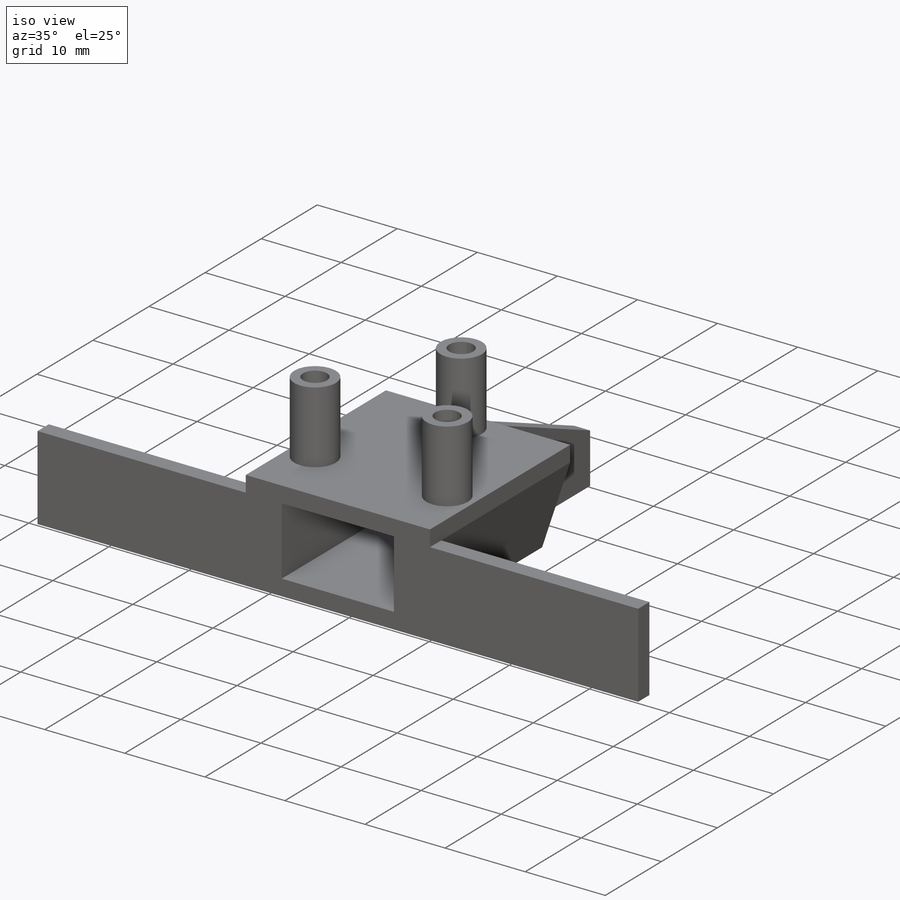
[diagram: iso view]
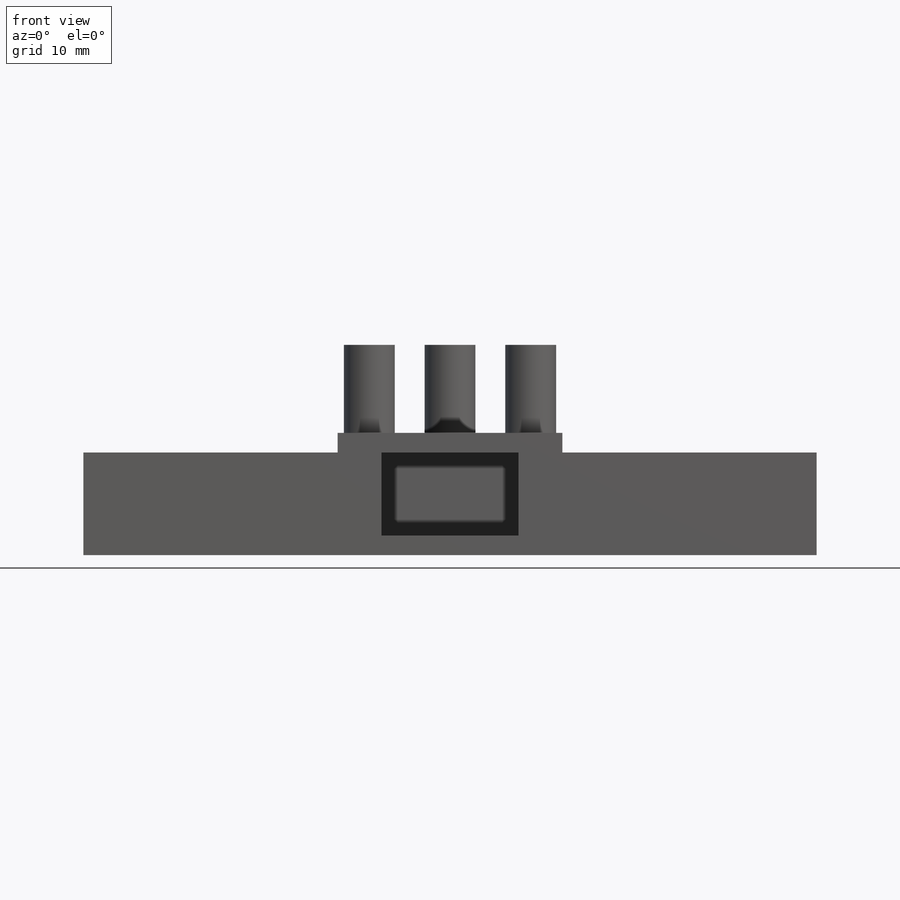
[diagram: front view]
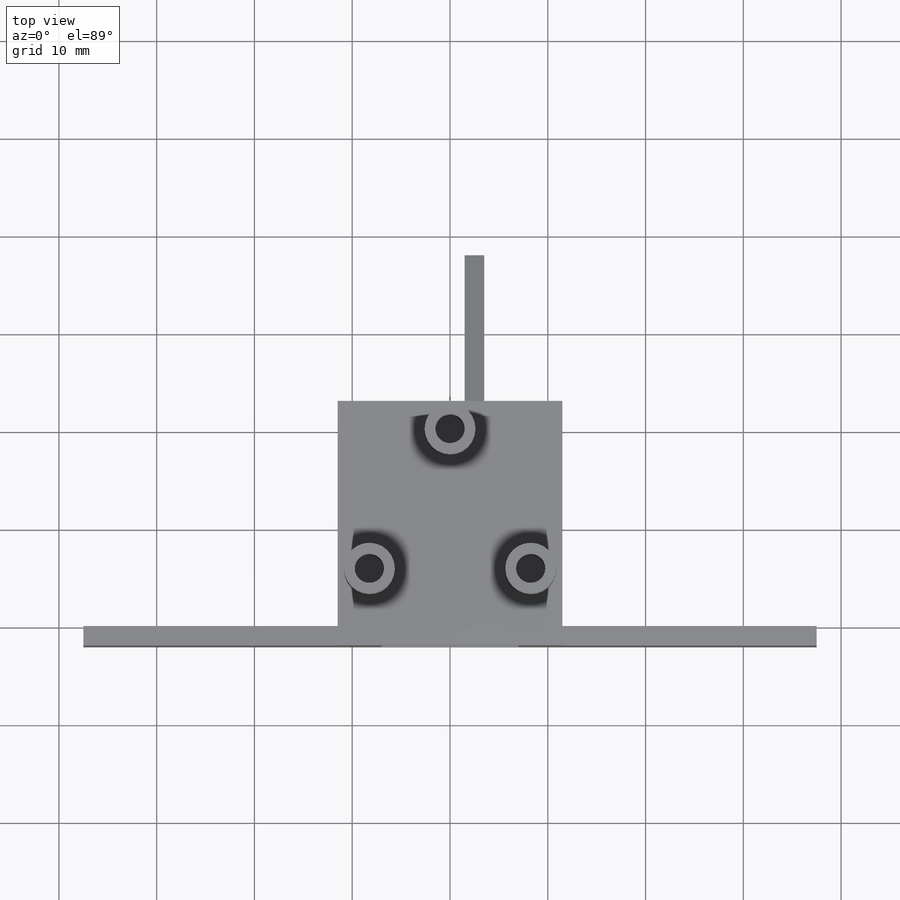
[diagram: top view]
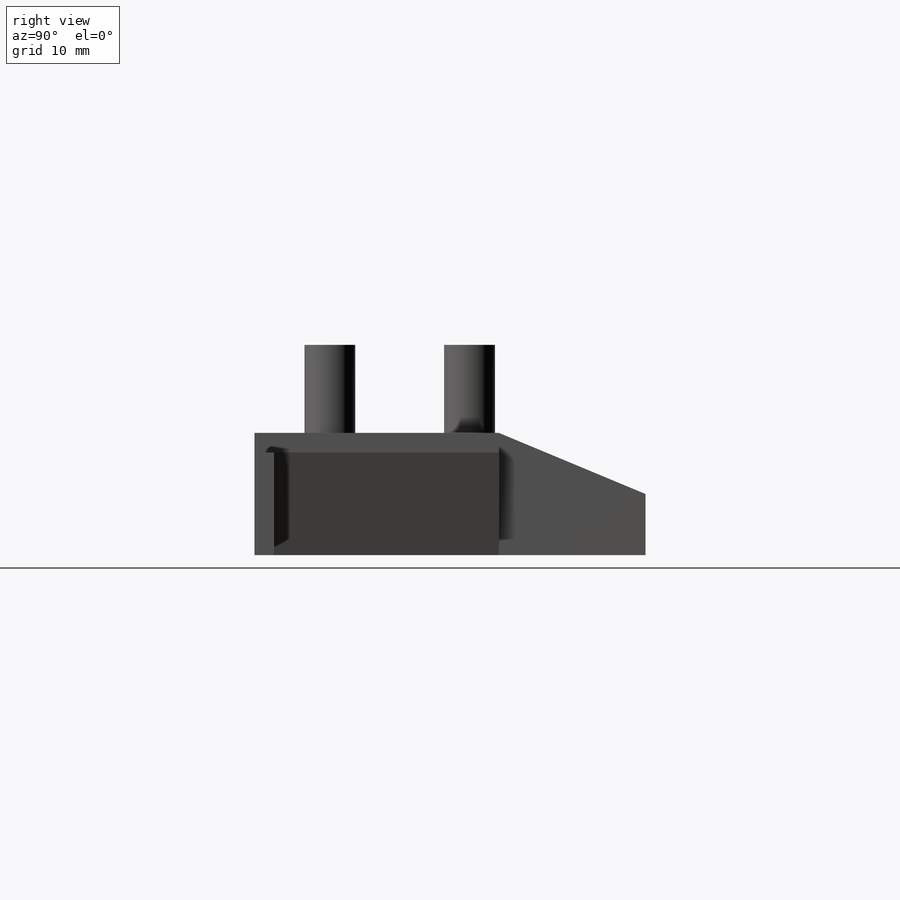
[diagram: right view]
SOLIDWORKS PART (.sldprt)
format: sldprt  version: not decoded by parser v0  size: 237,568 bytes
history: native  units: mm
features: sketch x8, extrude x5, cut_extrude x3, material x1, plane x1 (+11 scaffold rows collapsed)
feature tree (29):
  scaffold x11  (default folders/planes/origin — collapsed)
  material  "Material <not specified>"
  sketch  "Sketch1"  dims[D1=5.2mm D3=3.0mm D2=16.5mm]
  extrude  "Boss-Extrude1"  Depth=9mm
  sketch  "Sketch2"  dims[D1=23.0mm D2=25.0mm D3=3.0mm]
  extrude  "Boss-Extrude2"  Depth=12.5mm
  sketch  "Sketch3"  dims[D1=8.5mm D2=2.0mm D3=14.0mm D4=2.0mm]
  cut_extrude  "Cut-Extrude1"  Depth=2mm
  plane  "Plane1"
  sketch  "Sketch4"  dims[c1.D1=2.0mm c1.D2=10.0mm c2.D1=2.0mm c2.D2=10.5mm]
  extrude  "Boss-Extrude3"  Depth=26mm
  extrude  "Boss-Extrude4"  [1 undecoded]
  sketch  "Sketch4<2>"  dims[D1=26.0mm]
  sketch  "Sketch5"  dims[D1=2.0mm D2=1.5mm]
  extrude  "Boss-Extrude5"  Depth=15mm
  sketch  "Sketch6"  dims[D1=1.0mm D2=1.0mm D3=2.0mm D4=2.0mm]
  cut_extrude  "Cut-Extrude2"  [1 undecoded]
  sketch  "Sketch7"
  cut_extrude  "Cut-Extrude3"  [1 undecoded]
decode coverage: 12 of 16 modeling features carry decoded parameters
note: 3 parameter values undecoded
summary: no parameter record found for 3 features
note: suppression state not decoded; provenance and decode notes live in map.json
